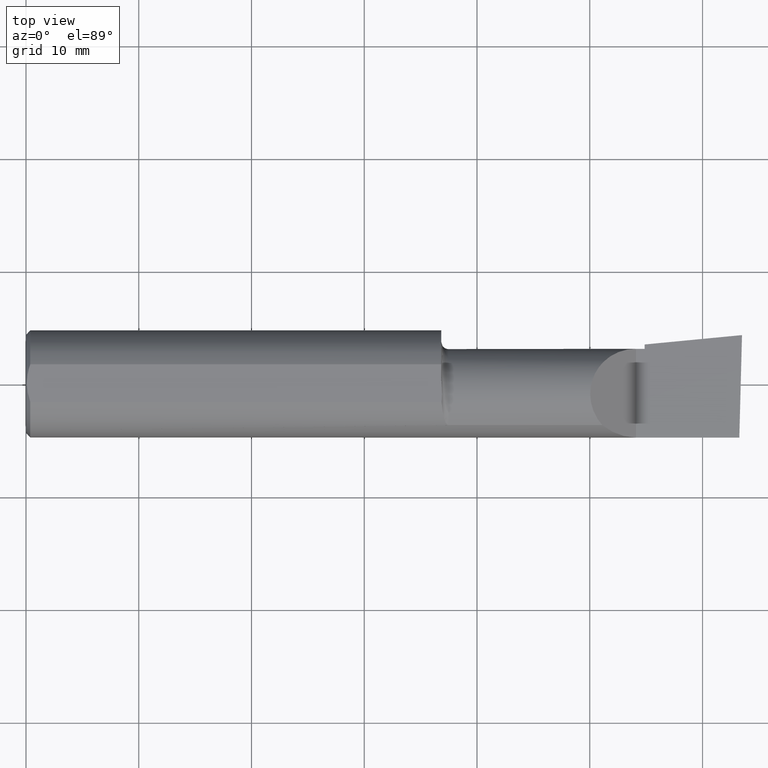
[diagram: clean part render]
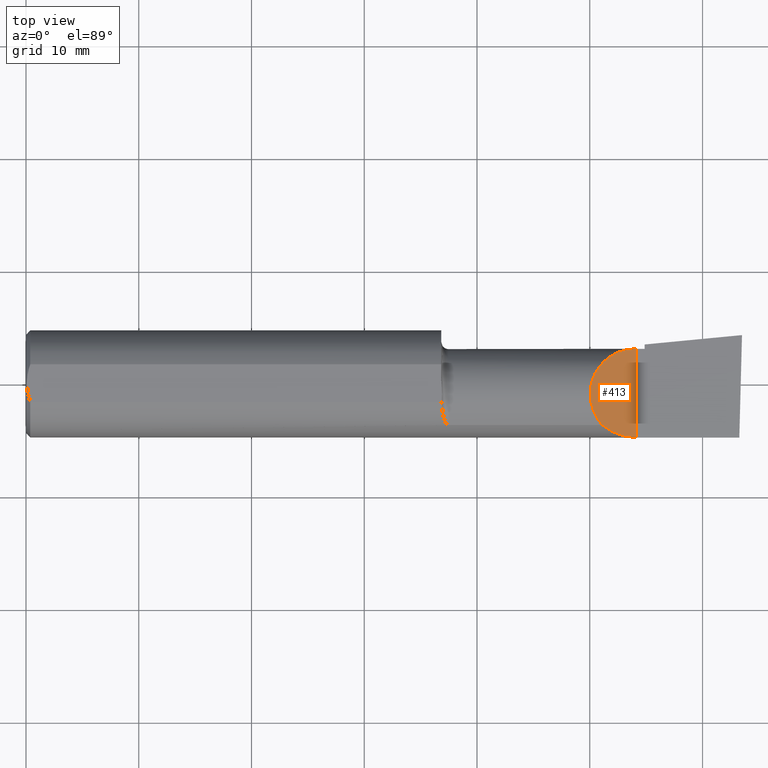
[diagram: same view with one face highlighted and labeled with its STEP entity id]
A machine part, top view. The second image highlights one B-rep face of the part: STEP entity #413.
In plain terms, the highlighted planar face has unit normal (-0.7071, 0, -0.7071).
Its self-contained STEP definition (entity closure, byte-faithful):
#6 = VERTEX_POINT ( 'NONE', #79 ) ;
#25 =( BOUNDED_CURVE ( )  B_SPLINE_CURVE ( 3, ( #447, #403, #454, #591 ),
 .UNSPECIFIED., .F., .F. ) 
 B_SPLINE_CURVE_WITH_KNOTS ( ( 4, 4 ),
 ( 4.712388980384689674, 5.393970886271889142 ),
 .UNSPECIFIED. ) 
 CURVE ( )  GEOMETRIC_REPRESENTATION_ITEM ( )  RATIONAL_B_SPLINE_CURVE ( ( 1.000000000000000000, 0.9616603987079548332, 0.9616603987079548332, 1.000000000000000000 ) ) 
 REPRESENTATION_ITEM ( '' )  );
#37 = FACE_OUTER_BOUND ( 'NONE', #445, .T. ) ;
#75 = VERTEX_POINT ( 'NONE', #141 ) ;
#79 = CARTESIAN_POINT ( 'NONE',  ( 2.129999999999999893, 0.1226499999999998147, 1.065442715258197396E-16 ) ) ;
#141 = CARTESIAN_POINT ( 'NONE',  ( 2.129999999999999893, -0.1873499999999999888, 1.065442715258197396E-16 ) ) ;
#179 = CARTESIAN_POINT ( 'NONE',  ( 2.129999999999999893, -0.2500000000000000555, 1.065442715258197396E-16 ) ) ;
#180 = EDGE_CURVE ( 'NONE', #75, #6, #254, .T. ) ;
#185 = DIRECTION ( 'NONE',  ( -0.7071067811865511255, 0.000000000000000000, 0.7071067811865437980 ) ) ;
#211 = VERTEX_POINT ( 'NONE', #594 ) ;
#254 = LINE ( 'NONE', #411, #458 ) ;
#257 = DIRECTION ( 'NONE',  ( -0.000000000000000000, 1.000000000000000000, -0.000000000000000000 ) ) ;
#259 =( BOUNDED_CURVE ( )  B_SPLINE_CURVE ( 3, ( #260, #460, #417, #513 ),
 .UNSPECIFIED., .F., .F. ) 
 B_SPLINE_CURVE_WITH_KNOTS ( ( 4, 4 ),
 ( 5.541729662751388119, 7.853981633974482790 ),
 .UNSPECIFIED. ) 
 CURVE ( )  GEOMETRIC_REPRESENTATION_ITEM ( )  RATIONAL_B_SPLINE_CURVE ( ( 1.000000000000000000, 0.6019254882129727591, 0.6019254882129727591, 1.000000000000000000 ) ) 
 REPRESENTATION_ITEM ( '' )  );
#260 = CARTESIAN_POINT ( 'NONE',  ( 2.011965325165093077, -0.1454917112299463633, 0.1180346748349055119 ) ) ;
#335 = EDGE_CURVE ( 'NONE', #211, #6, #259, .T. ) ;
#382 = ORIENTED_EDGE ( 'NONE', *, *, #582, .F. ) ;
#402 = AXIS2_PLACEMENT_3D ( 'NONE', #179, #430, #185 ) ;
#403 = CARTESIAN_POINT ( 'NONE',  ( 2.086590019116435268, -0.1873500000000000165, 0.04340998088356437523 ) ) ;
#411 = CARTESIAN_POINT ( 'NONE',  ( 2.129999999999999893, -0.2500000000000000555, 1.065442715258197396E-16 ) ) ;
#413 = ADVANCED_FACE ( 'NONE', ( #37 ), #486, .F. ) ;
#417 = CARTESIAN_POINT ( 'NONE',  ( 1.967758842172328437, 0.1226499999999999396, 0.1622411578276699295 ) ) ;
#430 = DIRECTION ( 'NONE',  ( -0.7071067811865439090, 0.000000000000000000, -0.7071067811865512365 ) ) ;
#445 = EDGE_LOOP ( 'NONE', ( #586, #382, #547 ) ) ;
#447 = CARTESIAN_POINT ( 'NONE',  ( 2.129999999999999893, -0.1873499999999999888, 1.065442715258197396E-16 ) ) ;
#454 = CARTESIAN_POINT ( 'NONE',  ( 2.045676520271626941, -0.1728409665178086418, 0.08432347972837203609 ) ) ;
#458 = VECTOR ( 'NONE', #257, 39.37007874015748143 ) ;
#460 = CARTESIAN_POINT ( 'NONE',  ( 1.902393788885675230, -0.02584108761840239049, 0.2276062111143221656 ) ) ;
#486 = PLANE ( 'NONE',  #402 ) ;
#513 = CARTESIAN_POINT ( 'NONE',  ( 2.129999999999999893, 0.1226499999999998147, 1.065442715258197396E-16 ) ) ;
#547 = ORIENTED_EDGE ( 'NONE', *, *, #180, .T. ) ;
#582 = EDGE_CURVE ( 'NONE', #75, #211, #25, .T. ) ;
#586 = ORIENTED_EDGE ( 'NONE', *, *, #335, .F. ) ;
#591 = CARTESIAN_POINT ( 'NONE',  ( 2.011965325165093077, -0.1454917112299463633, 0.1180346748349055119 ) ) ;
#594 = CARTESIAN_POINT ( 'NONE',  ( 2.011965325165093077, -0.1454917112299463633, 0.1180346748349055119 ) ) ;